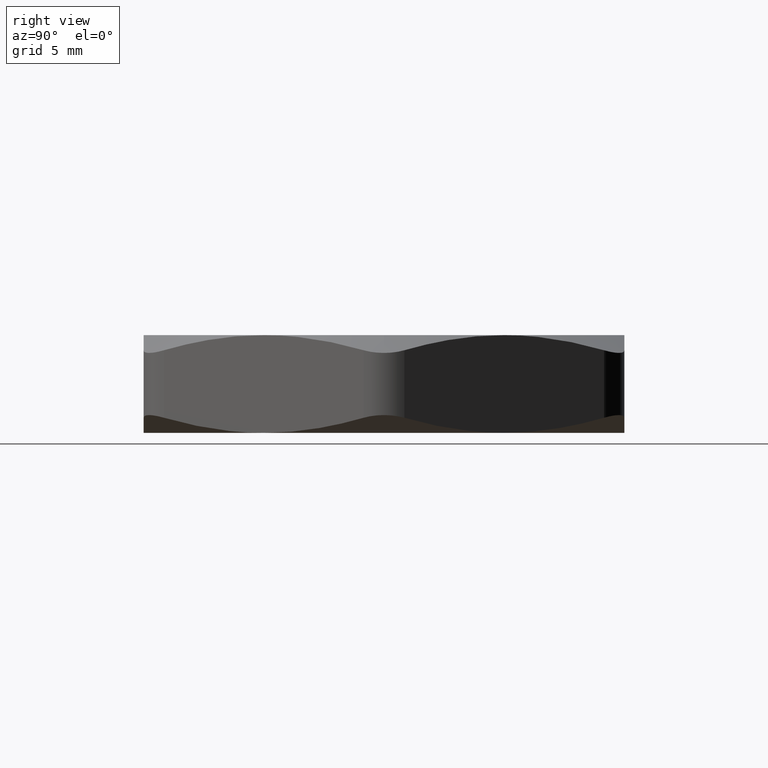
[diagram: clean part render]
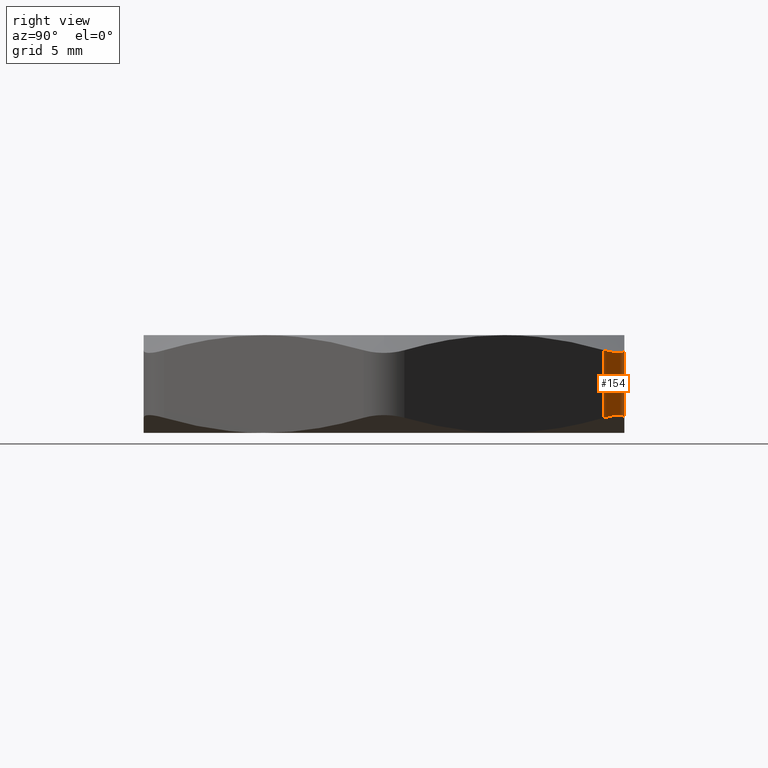
[diagram: same view with one face highlighted and labeled with its STEP entity id]
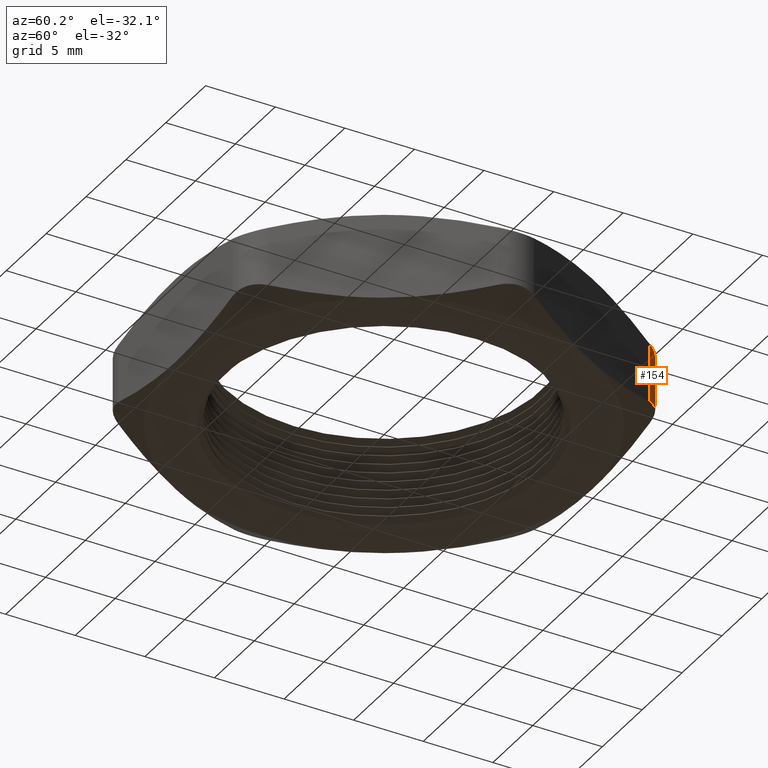
[diagram: same view with one face highlighted and labeled with its STEP entity id]
A machine part, right view. The second image highlights one B-rep face of the part: STEP entity #154.
A second angle (auxiliary view) of the same face is appended — the face is thin or edge-on in the first view.
In plain terms, the highlighted cylindrical surface (partial cylindrical patch) has radius 2.54 mm, axis along (0, 0, -1).
Its self-contained STEP definition (entity closure, byte-faithful):
#4 = VERTEX_POINT ( 'NONE', #234 ) ;
#7 = EDGE_CURVE ( 'NONE', #10, #4, #292, .T. ) ;
#10 = VERTEX_POINT ( 'NONE', #278 ) ;
#43 = EDGE_CURVE ( 'NONE', #567, #10, #358, .T. ) ;
#53 = EDGE_CURVE ( 'NONE', #4, #589, #406, .T. ) ;
#154 = ADVANCED_FACE ( 'NONE', ( #554 ), #549, .T. ) ;
#155 = EDGE_LOOP ( 'NONE', ( #156, #157, #158, #159 ) ) ;
#156 = ORIENTED_EDGE ( 'NONE', *, *, #43, .F. ) ;
#157 = ORIENTED_EDGE ( 'NONE', *, *, #585, .F. ) ;
#158 = ORIENTED_EDGE ( 'NONE', *, *, #53, .F. ) ;
#159 = ORIENTED_EDGE ( 'NONE', *, *, #7, .F. ) ;
#234 = CARTESIAN_POINT ( 'NONE',  ( 0.2829016319029168900, 0.5900000000000000800, 0.03713458295164568500 ) ) ;
#278 = CARTESIAN_POINT ( 'NONE',  ( 0.2829016319029171700, 0.5900000000000000800, 0.2028654170483542300 ) ) ;
#281 = VECTOR ( 'NONE', #290, 39.37007874015748100 ) ;
#290 = DIRECTION ( 'NONE',  ( 0.0000000000000000000, 0.0000000000000000000, -1.000000000000000000 ) ) ;
#291 = CARTESIAN_POINT ( 'NONE',  ( 0.2829016319029170100, 0.5900000000000000800, 0.2399999999999999900 ) ) ;
#292 = LINE ( 'NONE', #291, #281 ) ;
#354 = CARTESIAN_POINT ( 'NONE',  ( 0.3599671947628010900, 0.5543240852774838900, 0.1990702828468831900 ) ) ;
#355 = CARTESIAN_POINT ( 'NONE',  ( 0.3651916173786495800, 0.5474695642019259400, 0.2007123877637175500 ) ) ;
#356 = CARTESIAN_POINT ( 'NONE',  ( 0.3695041722813607900, 0.5400000000000000400, 0.2028654170483542300 ) ) ;
#358 = B_SPLINE_CURVE_WITH_KNOTS ( 'NONE', 3,
 ( #356, #355, #354, #413, #412, #411, #410, #409, #408, #407 ),
 .UNSPECIFIED., .F., .F.,
 ( 4, 2, 2, 2, 4 ),
 ( 0.0000000000000000000, 0.0006682960564478906100, 0.001336592112895781200, 0.002004888169343671700, 0.002673184225791562400 ),
 .UNSPECIFIED. ) ;
#384 = CARTESIAN_POINT ( 'NONE',  ( 0.3695041722813609000, 0.5400000000000000400, 0.03713458295164579600 ) ) ;
#385 = CARTESIAN_POINT ( 'NONE',  ( 0.3651904554059001200, 0.5474715767977664800, 0.03928819234747308500 ) ) ;
#386 = CARTESIAN_POINT ( 'NONE',  ( 0.3598414532580950200, 0.5544671193442021200, 0.04095983016372673600 ) ) ;
#387 = CARTESIAN_POINT ( 'NONE',  ( 0.3475476063483935500, 0.5667896059027592900, 0.04318959498730322300 ) ) ;
#388 = CARTESIAN_POINT ( 'NONE',  ( 0.3404397416420372200, 0.5722587433953414400, 0.04376857535265841300 ) ) ;
#389 = CARTESIAN_POINT ( 'NONE',  ( 0.3252205007555262200, 0.5810288321158045800, 0.04376146073741400000 ) ) ;
#390 = CARTESIAN_POINT ( 'NONE',  ( 0.3170041821407507700, 0.5844124196966256100, 0.04318476353941790000 ) ) ;
#391 = CARTESIAN_POINT ( 'NONE',  ( 0.3000751423984726100, 0.5889027778323481200, 0.04092971715311677400 ) ) ;
#392 = CARTESIAN_POINT ( 'NONE',  ( 0.2915267417083394800, 0.5899999999999999700, 0.03928761223628236100 ) ) ;
#393 = CARTESIAN_POINT ( 'NONE',  ( 0.2829016319029168900, 0.5900000000000000800, 0.03713458295164568500 ) ) ;
#406 = B_SPLINE_CURVE_WITH_KNOTS ( 'NONE', 3,
 ( #393, #392, #391, #390, #389, #388, #387, #386, #385, #384 ),
 .UNSPECIFIED., .F., .F.,
 ( 4, 2, 2, 2, 4 ),
 ( 3.529906531158615100E-018, 0.0006682960564478963500, 0.001336592112895786600, 0.002004888169343677300, 0.002673184225791567600 ),
 .UNSPECIFIED. ) ;
#407 = CARTESIAN_POINT ( 'NONE',  ( 0.2829016319029171700, 0.5900000000000000800, 0.2028654170483542300 ) ) ;
#408 = CARTESIAN_POINT ( 'NONE',  ( 0.2915290656538394600, 0.5900000000000004100, 0.2007118076525269100 ) ) ;
#409 = CARTESIAN_POINT ( 'NONE',  ( 0.3002618842862103100, 0.5888653995283216200, 0.1990401698362733500 ) ) ;
#410 = CARTESIAN_POINT ( 'NONE',  ( 0.3170803941385639300, 0.5843798590735619400, 0.1968104050126968700 ) ) ;
#411 = CARTESIAN_POINT ( 'NONE',  ( 0.3253707384971081300, 0.5809588364174853600, 0.1962314246473416700 ) ) ;
#412 = CARTESIAN_POINT ( 'NONE',  ( 0.3405754785657279000, 0.5721636315436836600, 0.1962385392625860800 ) ) ;
#413 = CARTESIAN_POINT ( 'NONE',  ( 0.3476139106740361300, 0.5667398846881118700, 0.1968152364605820200 ) ) ;
#544 = DIRECTION ( 'NONE',  ( -1.000000000000000000, 0.0000000000000000000, 0.0000000000000000000 ) ) ;
#545 = DIRECTION ( 'NONE',  ( 0.0000000000000000000, 0.0000000000000000000, -1.000000000000000000 ) ) ;
#546 = CARTESIAN_POINT ( 'NONE',  ( 0.2829016319029170100, 0.4900000000000001000, 0.2399999999999999900 ) ) ;
#547 = AXIS2_PLACEMENT_3D ( 'NONE', #546, #545, #544 ) ;
#549 = CYLINDRICAL_SURFACE ( 'NONE', #547, 0.1000000000000000200 ) ;
#554 = FACE_OUTER_BOUND ( 'NONE', #155, .T. ) ;
#567 = VERTEX_POINT ( 'NONE', #1181 ) ;
#585 = EDGE_CURVE ( 'NONE', #589, #567, #1250, .T. ) ;
#589 = VERTEX_POINT ( 'NONE', #1237 ) ;
#1181 = CARTESIAN_POINT ( 'NONE',  ( 0.3695041722813607900, 0.5400000000000000400, 0.2028654170483542300 ) ) ;
#1237 = CARTESIAN_POINT ( 'NONE',  ( 0.3695041722813609000, 0.5400000000000000400, 0.03713458295164579600 ) ) ;
#1239 = VECTOR ( 'NONE', #1248, 39.37007874015748100 ) ;
#1248 = DIRECTION ( 'NONE',  ( 0.0000000000000000000, 0.0000000000000000000, 1.000000000000000000 ) ) ;
#1249 = CARTESIAN_POINT ( 'NONE',  ( 0.3695041722813609000, 0.5400000000000000400, 0.2399999999999999900 ) ) ;
#1250 = LINE ( 'NONE', #1249, #1239 ) ;